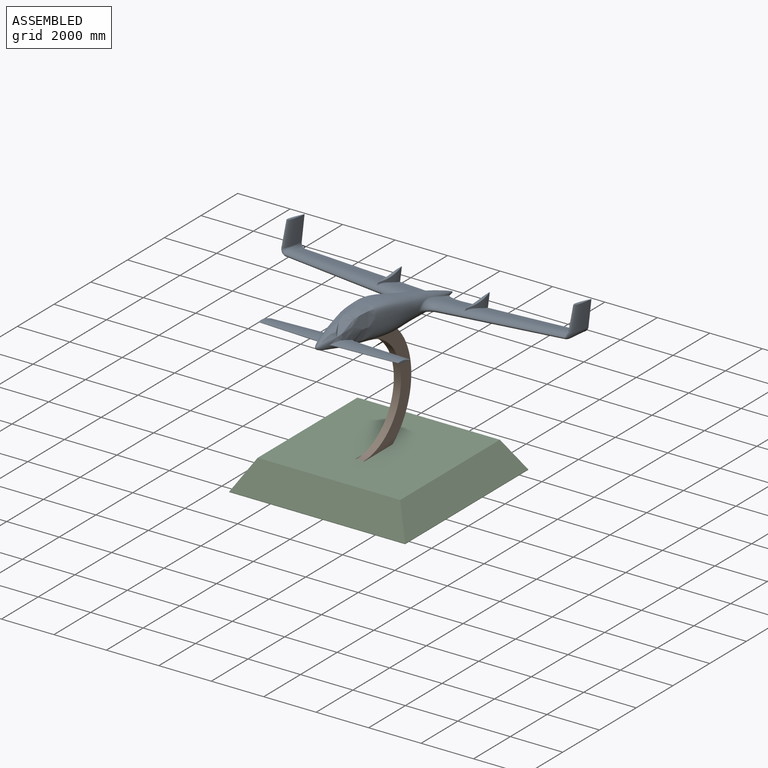
[diagram: assembled view]
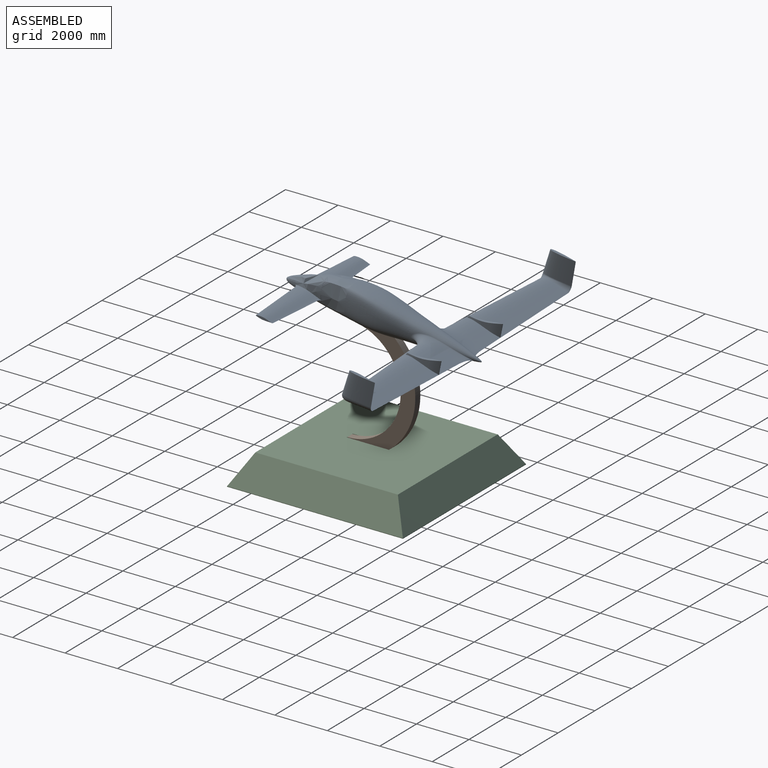
[diagram: assembled view, second angle]
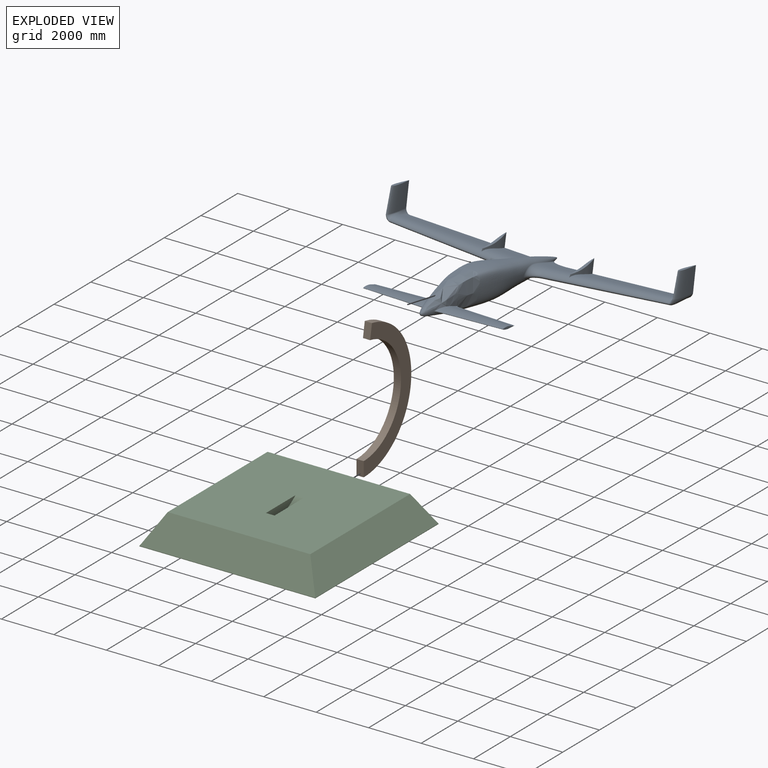
[diagram: exploded view]
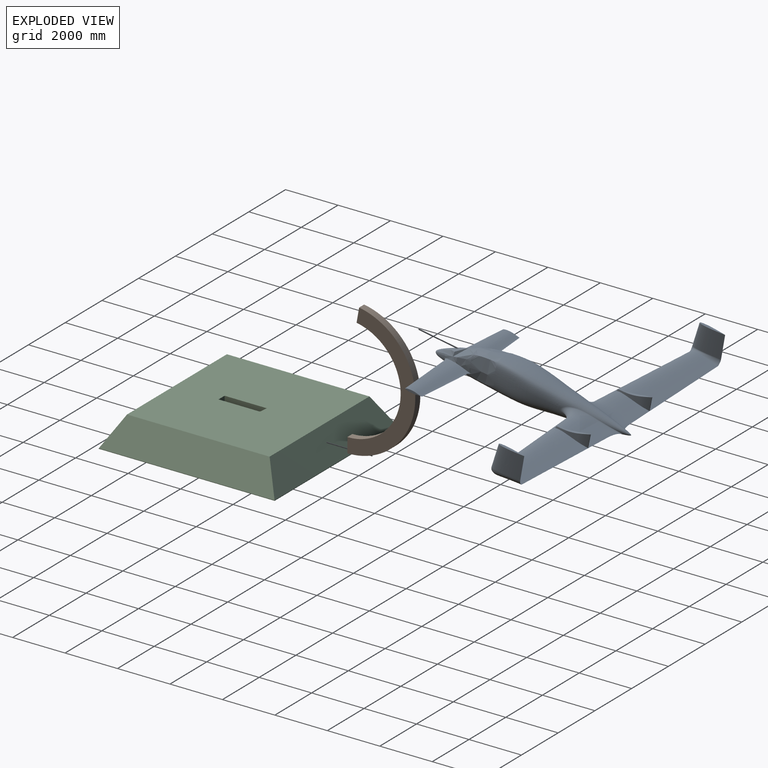
[diagram: exploded view, second angle]
ASSEMBLY  parts=3 mates=2
PART A: 233 faces, bbox 7494.4x11081.8x1985.3 mm
  f0: bspline ~370.06x29.98mm, area 3690.1mm2, adj f2,f5,f6,f8
  f1: bspline ~273.11x91.23mm, area 13028.4mm2, adj f4,f9,f11,f13,f15
  f2: bspline ~292.41x41.22mm, area 2700.3mm2, adj f0,f3,f8,f18
  f3: bspline ~300.31x42.01mm, area 2749.1mm2, adj f2,f8,f19,f20
  f4: extruded ~287.9x100.46mm, area 28910.7mm2, adj f1,f7,f10,f14,f17,f25
  f5: bspline ~87.96x7.21mm, area 871.6mm2, adj f0,f8,f27,f28
  f6: bspline ~900.47x451.13mm, area 354403.3mm2, adj f0,f18,f27,f32
  f7: extruded ~310.32x100.46mm, area 30508.9mm2, adj f4,f16,f26,f29,f31,f33
  f8: plane 934.49x108.58mm, normal (0,0,1), area 65994mm2, adj f0,f2,f3,f5,f19,f28,f35
  f9: bspline ~248.32x87.9mm, area 2688.4mm2, adj f1,f10,f13,f36
  f10: cylinder r=6.35mm len=6.91mm, axis (-0.94,-0.09,0.32), area 28.3mm2, adj f4,f9,f25,f36
  f11: bspline ~39.82x17.77mm, area 339.8mm2, adj f1,f12,f15,f38
  f12: bspline ~22x8.38mm, area 157.1mm2, adj f11,f13,f38
  f13: bspline ~39.26x17.49mm, area 340mm2, adj f1,f9,f12,f38
  f14: cylinder r=6.35mm len=6.91mm, axis (0.94,-0.09,-0.32), area 28.3mm2, adj f4,f15,f17,f39
  f15: bspline ~248.32x87.9mm, area 2688.4mm2, adj f1,f11,f14,f39
  f16: cylinder r=6.35mm len=6.58mm, axis (0.97,0,-0.26), area 17mm2, adj f7,f17,f31,f40
  f17: bspline ~287.9x95.58mm, area 3008.2mm2, adj f4,f14,f16,f40
  f18: bspline ~900.44x327.56mm, area 280833.3mm2, adj f2,f6,f20,f41
  f19: bspline ~384.71x30.01mm, area 3797.7mm2, adj f3,f8,f35,f42
  f20: bspline ~906.78x333.09mm, area 285566.8mm2, adj f3,f18,f42,f43
  f21: bspline ~373.75x30.45mm, area 3690mm2, adj f24,f45,f46,f47
  f22: bspline ~297.33x41.62mm, area 2750.1mm2, adj f24,f44,f45,f48
  f23: bspline ~273.11x91.23mm, area 13028.4mm2, adj f50,f52,f53,f55,f56
  f24: bspline ~295.39x41.51mm, area 2699.7mm2, adj f21,f22,f45,f60
  f25: bspline ~287.87x95.47mm, area 3008.2mm2, adj f4,f10,f26,f61
  f26: cylinder r=6.35mm len=6.58mm, axis (-0.97,0,0.26), area 17mm2, adj f7,f25,f29,f61
  f27: bspline ~906.78x180.47mm, area 84079.9mm2, adj f5,f6,f62,f63
  f28: bspline ~234.58x57.85mm, area 2410.2mm2, adj f5,f8,f35,f63
  f29: bspline ~310.41x66.63mm, area 3136.8mm2, adj f7,f26,f30,f64
  f30: cylinder r=6.35mm len=6.39mm, axis (-0.99,0.06,0.13), area 9mm2, adj f29,f33,f64,f65
  f31: bspline ~310.41x66.63mm, area 3136.8mm2, adj f7,f16,f34,f69
  f32: bspline ~435.48x133.01mm, area 62668.8mm2, adj f6,f41,f62,f70
  f33: bspline ~388.91x89.7mm, area 19393.3mm2, adj f7,f30,f34,f65,f66,f68,f71
  f34: cylinder r=6.35mm len=6.39mm, axis (0.99,0.06,-0.13), area 9mm2, adj f31,f33,f69,f71
  f35: bspline ~306.52x58.73mm, area 3124mm2, adj f8,f19,f28,f72
  f36: bspline ~486.87x250.52mm, area 104554.7mm2, adj f9,f10,f38,f61,f73
  f37: plane 9.46x9.13mm, normal (0.03,0,-1), area 47.6mm2, adj f38,f73
  f38: bspline ~513.52x51.94mm, area 38640.3mm2, adj f11,f12,f13,f36,f37,f39,f73
  f39: bspline ~485.96x250.52mm, area 103918.9mm2, adj f14,f15,f38,f40,f73
  f40: bspline ~403.3x287.9mm, area 81431.7mm2, adj f16,f17,f39,f69,f70,f73
  f41: bspline ~336.36x196.29mm, area 76801.5mm2, adj f18,f32,f43,f73
  f42: bspline ~900.48x463.97mm, area 364796.6mm2, adj f19,f20,f72,f74
  f43: bspline ~336.15x214.25mm, area 97217.8mm2, adj f20,f41,f74,f75
  f44: bspline ~380.92x29.64mm, area 3797.7mm2, adj f22,f45,f76,f77
  f45: plane 934.49x108.59mm, normal (0,0,1), area 66003mm2, adj f21,f22,f24,f44,f46,f76,f78
  f46: bspline ~87.96x7.21mm, area 871.6mm2, adj f21,f45,f78,f79
  f47: bspline ~900.47x451.13mm, area 354403.3mm2, adj f21,f60,f79,f80
  f48: bspline ~906.78x333.09mm, area 285566.8mm2, adj f22,f60,f77,f84
  f49: extruded ~310.32x100.46mm, area 30508.9mm2, adj f50,f59,f81,f83,f86,f87
  f50: extruded ~287.9x100.46mm, area 28910.7mm2, adj f23,f49,f51,f57,f58,f88
  f51: bspline ~6.92x6.58mm, area 28.3mm2, adj f50,f52,f88,f89
  f52: bspline ~248.32x87.92mm, area 2688.4mm2, adj f23,f51,f53,f89
  f53: bspline ~39.28x17.59mm, area 340mm2, adj f23,f52,f54,f91
  f54: bspline ~22x8.38mm, area 157mm2, adj f53,f55,f91
  f55: bspline ~39.82x17.77mm, area 339.8mm2, adj f23,f54,f56,f91
  f56: bspline ~249.91x88.53mm, area 2688.4mm2, adj f23,f55,f57,f92
  f57: bspline ~6.91x6.57mm, area 28.3mm2, adj f50,f56,f58,f92
  f58: bspline ~287.87x95.47mm, area 3008.2mm2, adj f50,f57,f59,f93
  f59: cylinder r=6.35mm len=6.58mm, axis (0.97,0,-0.26), area 17mm2, adj f49,f58,f81,f93
  f60: bspline ~906.78x330.9mm, area 280833.3mm2, adj f24,f47,f48,f94
  f61: bspline ~407.28x287.9mm, area 82732.4mm2, adj f25,f26,f36,f64,f73,f95
  f62: bspline ~122.54x87.46mm, area 11974.4mm2, adj f27,f32,f96,f97
  f63: bspline ~906.78x355.83mm, area 240121.8mm2, adj f27,f28,f72,f97
  f64: bspline ~325.09x261.07mm, area 49141.1mm2, adj f29,f30,f61,f95,f98
  f65: bspline ~340.38x41.1mm, area 3344.1mm2, adj f30,f33,f66,f98
  f66: bspline ~52.98x17.23mm, area 459.7mm2, adj f33,f65,f67,f99
  f67: bspline ~11.2x5.69mm, area 28.6mm2, adj f66,f68,f99
  f68: bspline ~53.85x17.37mm, area 459.8mm2, adj f33,f67,f71,f99
  f69: bspline ~324.78x256.84mm, area 47737.4mm2, adj f31,f34,f40,f70,f100
  f70: bspline ~3984.81x686.27mm, area 1789434.2mm2, adj f32,f40,f69,f73,f96,f100
  f71: bspline ~340.39x41.19mm, area 3344.1mm2, adj f33,f34,f68,f100
  f72: bspline ~906.78x427.9mm, area 309106.2mm2, adj f35,f42,f63,f101
  f73: bspline ~4572x467.65mm, area 1838622.1mm2, adj f36,f37,f38,f39,f40,f41,f61,f70
  f74: bspline ~431.23x255.04mm, area 145727mm2, adj f42,f43,f101,f103
  f75: bspline ~4572x467.37mm, area 1841452.6mm2, adj f43,f73,f103,f104
  f76: bspline ~306.52x58.71mm, area 3122.8mm2, adj f44,f45,f78,f105
  f77: bspline ~900.48x463.97mm, area 364796.6mm2, adj f44,f48,f105,f106
  f78: bspline ~234.58x57.85mm, area 2410.4mm2, adj f45,f46,f76,f108
  f79: bspline ~906.78x180.47mm, area 84079.9mm2, adj f46,f47,f107,f108
  f80: bspline ~435.48x133.01mm, area 62668.8mm2, adj f47,f94,f107,f113
  f81: bspline ~310.41x66.63mm, area 3136.8mm2, adj f49,f59,f82,f114
  f82: cylinder r=6.35mm len=6.39mm, axis (0.99,-0.06,-0.13), area 9mm2, adj f81,f83,f112,f114
  f83: bspline ~388.91x89.7mm, area 19393.3mm2, adj f49,f82,f85,f109,f111,f112,f115
  f84: bspline ~336.15x214.25mm, area 97217.8mm2, adj f48,f94,f106,f116
  f85: cylinder r=6.35mm len=6.39mm, axis (-0.99,-0.06,0.13), area 9mm2, adj f83,f86,f115,f118
  f86: bspline ~310.41x66.63mm, area 3136.8mm2, adj f49,f85,f87,f118
  f87: cylinder r=6.35mm len=6.58mm, axis (-0.97,0,0.26), area 17mm2, adj f49,f86,f88,f119
  f88: bspline ~287.9x95.58mm, area 3008.2mm2, adj f50,f51,f87,f119
  f89: bspline ~486.87x250.52mm, area 104552.4mm2, adj f51,f52,f91,f119,f120
  f90: plane 9.46x9.13mm, normal (0.03,0,-1), area 47.6mm2, adj f91,f120
  f91: bspline ~513.52x51.94mm, area 38640.3mm2, adj f53,f54,f55,f89,f90,f92,f120
  f92: bspline ~485.96x250.52mm, area 103916.6mm2, adj f56,f57,f91,f93,f120
  f93: bspline ~403.3x287.9mm, area 81431.6mm2, adj f58,f59,f92,f113,f114,f120
  f94: bspline ~336.36x196.29mm, area 76801.5mm2, adj f60,f80,f84,f120
  f95: bspline ~985.19x621.52mm, area 513828.5mm2, adj f61,f64,f73,f98,f122,f123
  f96: bspline ~3613.64x369.42mm, area 426751.8mm2, adj f62,f70,f100,f124
  f97: bspline ~267.07x198.12mm, area 46247.7mm2, adj f62,f63,f101,f124
  f98: bspline ~383.44x141.24mm, area 27521.8mm2, adj f64,f65,f95,f99,f123,f124
  f99: bspline ~101.03x97mm, area 9672.3mm2, adj f66,f67,f68,f98,f100,f124
  f100: bspline ~381.93x137.7mm, area 26757.1mm2, adj f69,f70,f71,f96,f99,f124
  f101: bspline ~348.06x265.45mm, area 128071.3mm2, adj f72,f74,f97,f125
  f102: bspline ~726.86x682.44mm, area 307035mm2, adj f73,f104,f122,f126
  f103: bspline ~4572x726.51mm, area 2352181.2mm2, adj f74,f75,f125,f127
  f104: bspline ~730.83x682.44mm, area 302117.4mm2, adj f75,f102,f126,f127
  f105: bspline ~906.78x427.9mm, area 309106.2mm2, adj f76,f77,f108,f129
  f106: bspline ~431.23x255.04mm, area 145727mm2, adj f77,f84,f129,f130
  f107: bspline ~122.54x87.46mm, area 11974.4mm2, adj f79,f80,f131,f132
  f108: bspline ~906.78x355.83mm, area 240121.8mm2, adj f78,f79,f105,f132
  f109: bspline ~53.85x17.37mm, area 459.8mm2, adj f83,f110,f112,f133
  f110: bspline ~11.2x5.69mm, area 28.6mm2, adj f109,f111,f133
  f111: bspline ~53.7x17.4mm, area 459.7mm2, adj f83,f110,f115,f133
  f112: bspline ~340.38x41.1mm, area 3344.1mm2, adj f82,f83,f109,f134
  f113: bspline ~3984.81x686.27mm, area 1789434.2mm2, adj f80,f93,f114,f120,f131,f134
  f114: bspline ~324.78x256.84mm, area 47650.1mm2, adj f81,f82,f93,f113,f134
  f115: bspline ~340.38x41.1mm, area 3344.1mm2, adj f83,f85,f111,f135
  f116: bspline ~4572x467.37mm, area 1841452.6mm2, adj f84,f120,f130,f136
  f117: bspline ~172.67x99.31mm, area 15444.4mm2, adj f121,f126,f128,f137
  f118: bspline ~325.09x261.07mm, area 49141.1mm2, adj f85,f86,f119,f135,f139
  f119: bspline ~407.28x287.9mm, area 82728.3mm2, adj f87,f88,f89,f118,f120,f139
  f120: bspline ~4572x467.65mm, area 1838696.3mm2, adj f89,f90,f91,f92,f93,f94,f113,f116
  f121: bspline ~782.2x164.62mm, area 84341.4mm2, adj f117,f126,f140,f153
  f122: bspline ~872.41x545.43mm, area 344022.6mm2, adj f95,f102,f141,f142
  f123: bspline ~999.21x207.48mm, area 124281mm2, adj f95,f98,f124,f142
  f124: bspline ~4617.72x675.14mm, area 1591587.6mm2, adj f96,f97,f98,f99,f100,f123,f125,f143
  f125: bspline ~4617.72x776.07mm, area 1992815.2mm2, adj f101,f103,f124,f144
  f126: bspline ~777.61x307.38mm, area 107657.9mm2, adj f102,f104,f117,f121,f128,f141,f145
  f127: bspline ~872.41x546.48mm, area 327165.3mm2, adj f103,f104,f144,f145
  f128: bspline ~782.2x164.62mm, area 84341.3mm2, adj f117,f126,f146,f159
  f129: bspline ~348.06x265.45mm, area 128071.3mm2, adj f105,f106,f132,f148
  f130: bspline ~4572x726.51mm, area 2352181.2mm2, adj f106,f116,f147,f148
  f131: bspline ~3613.64x369.42mm, area 426751.8mm2, adj f107,f113,f134,f149
  f132: bspline ~267.07x198.12mm, area 46247.7mm2, adj f107,f108,f129,f149
  f133: bspline ~101.03x97mm, area 9676.9mm2, adj f109,f110,f111,f134,f135,f149
  f134: bspline ~381.93x137.7mm, area 26757.1mm2, adj f112,f113,f114,f131,f133,f149
  f135: bspline ~383.44x141.24mm, area 27521.8mm2, adj f115,f118,f133,f139,f149,f150
  f136: bspline ~730.83x682.44mm, area 302117.4mm2, adj f116,f138,f147,f151
  f137: bspline ~172.67x99.31mm, area 15444.4mm2, adj f117,f140,f146,f151
  f138: bspline ~726.86x682.44mm, area 307035mm2, adj f120,f136,f151,f152
  f139: bspline ~985.19x621.52mm, area 513828.5mm2, adj f118,f119,f120,f135,f150,f152
  f140: bspline ~782.2x164.62mm, area 84341.4mm2, adj f121,f137,f151,f153
  f141: bspline ~872.41x182.78mm, area 56531.7mm2, adj f122,f126,f142,f153,f155
  f142: bspline ~456.81x453.66mm, area 77640.2mm2, adj f122,f123,f141,f143,f155
  f143: bspline ~790.43x418.5mm, area 239584.5mm2, adj f124,f142,f144,f155
  f144: bspline ~930.75x435.52mm, area 264866.6mm2, adj f125,f127,f143,f155
  f145: bspline ~872.41x175.6mm, area 85399.7mm2, adj f126,f127,f155,f159
  f146: bspline ~782.2x164.62mm, area 84341.3mm2, adj f128,f137,f151,f159
  f147: bspline ~872.41x546.48mm, area 327165.3mm2, adj f130,f136,f161,f162
  f148: bspline ~4617.72x776.07mm, area 1992815.2mm2, adj f129,f130,f149,f162
  f149: bspline ~4572x670.64mm, area 1591714.1mm2, adj f131,f132,f133,f134,f135,f148,f150,f163
  f150: bspline ~999.21x207.48mm, area 124281mm2, adj f135,f139,f149,f164
  f151: bspline ~777.61x307.38mm, area 107658mm2, adj f136,f137,f138,f140,f146,f161,f165
  f152: bspline ~872.41x545.43mm, area 344022.6mm2, adj f138,f139,f164,f165
  f153: bspline ~872.41x507.91mm, area 398004.4mm2, adj f121,f140,f141,f165,f166
  f154: bspline ~183.99x50.45mm, area 1884.1mm2, adj f157,f158,f168,f185
  f155: bspline ~1035.14x715mm, area 446404.1mm2, adj f141,f142,f143,f144,f145,f166,f169,f173
  f156: bspline ~48.03x8.65mm, area 222.7mm2, adj f167,f168,f170,f172,f183
  f157: bspline ~181.25x40.68mm, area 1845.7mm2, adj f154,f158,f171,f172
  f158: plane 585.68x86.73mm, normal (0,-1,0), area 32892.4mm2, adj f154,f157,f168,f172
  f159: bspline ~872.41x500.26mm, area 397184mm2, adj f128,f145,f146,f161,f173
  f160: bspline ~183.99x50.45mm, area 1883.6mm2, adj f174,f175,f176,f182
  f161: bspline ~872.41x175.6mm, area 85399.7mm2, adj f147,f151,f159,f179
  f162: bspline ~938.76x435.52mm, area 264866.6mm2, adj f147,f148,f163,f179
  f163: bspline ~799.68x418.5mm, area 239584.5mm2, adj f149,f162,f164,f179
  f164: bspline ~456.81x453.66mm, area 77640.3mm2, adj f150,f152,f163,f165,f179
  f165: bspline ~872.41x182.78mm, area 56366.3mm2, adj f151,f152,f153,f164,f179
  f166: bspline ~1035.14x740.77mm, area 700494.5mm2, adj f153,f155,f179,f180
  f167: bspline ~47.47x10.37mm, area 198.1mm2, adj f156,f168,f183
  f168: bspline ~418.47x55.62mm, area 4169.7mm2, adj f154,f156,f158,f167,f172,f184
  f169: bspline ~1032.93x962.99mm, area 932025.4mm2, adj f155,f180,f186,f190
  f170: bspline ~2227.18x204.5mm, area 129578.8mm2, adj f156,f183,f188,f189
  f171: bspline ~2233.48x327.48mm, area 523389.1mm2, adj f157,f185,f187,f189
  f172: bspline ~420.8x44.74mm, area 4185.4mm2, adj f156,f157,f158,f168,f189
  f173: bspline ~1035.14x661.64mm, area 665602.5mm2, adj f155,f159,f179,f190
  f174: bspline ~418.47x55.62mm, area 4169.7mm2, adj f160,f175,f177,f178,f181,f191
  f175: plane 585.68x86.73mm, normal (0,1,0), area 32893mm2, adj f160,f174,f176,f191
  f176: bspline ~181.24x40.68mm, area 1846.8mm2, adj f160,f175,f191,f192
  f177: bspline ~47.47x10.37mm, area 198.1mm2, adj f174,f178,f193
  f178: bspline ~48.03x8.65mm, area 222mm2, adj f174,f177,f191,f193,f194
  f179: bspline ~1035.14x715mm, area 446403.8mm2, adj f161,f162,f163,f164,f165,f166,f173,f195
  f180: bspline ~1032.93x934.75mm, area 935660.4mm2, adj f166,f169,f195,f196
  f181: bspline ~2227.21x614.58mm, area 1162291mm2, adj f174,f182,f193,f197
  f182: bspline ~2233.48x330.08mm, area 536714.9mm2, adj f160,f181,f192,f198
  f183: bspline ~2233.48x204.62mm, area 128892.2mm2, adj f156,f167,f170,f184,f199
  f184: bspline ~2227.21x614.58mm, area 1162291mm2, adj f168,f183,f185,f200
  f185: bspline ~2233.48x330.08mm, area 536714.9mm2, adj f154,f171,f184,f201
  f186: bspline ~1143x1032.29mm, area 1206653.8mm2, adj f169,f196,f203,f205
  f187: bspline ~355.8x235.1mm, area 64808.3mm2, adj f171,f201,f204,f219
  f188: bspline ~175.32x115mm, area 8604.4mm2, adj f170,f199,f203,f204
  f189: bspline ~2233.48x618.01mm, area 1163869.2mm2, adj f170,f171,f172,f204
  f190: bspline ~1032.93x774.6mm, area 636923.2mm2, adj f169,f173,f195,f205,f229,f230,f231
  f191: bspline ~420.8x44.74mm, area 4185.4mm2, adj f174,f175,f176,f178,f206
  f192: bspline ~2233.48x327.48mm, area 523389.1mm2, adj f176,f182,f206,f207
  f193: bspline ~2233.48x204.62mm, area 129493mm2, adj f177,f178,f181,f194,f208
  f194: bspline ~2227.18x204.5mm, area 129578.8mm2, adj f178,f193,f206,f209
  f195: bspline ~1032.93x962.99mm, area 932025.4mm2, adj f179,f180,f190,f210
  f196: bspline ~1143x948.34mm, area 1077712mm2, adj f180,f186,f210,f211
  f197: bspline ~788.76x165.25mm, area 84814.6mm2, adj f181,f198,f208,f212
  f198: bspline ~385.98x239.45mm, area 58588mm2, adj f182,f197,f207,f226
  f199: bspline ~174.74x110.05mm, area 8280.3mm2, adj f183,f188,f200,f203,f214
  f200: bspline ~740.68x164.84mm, area 84595.6mm2, adj f184,f199,f201,f214
  f201: bspline ~359.53x233.95mm, area 58546.5mm2, adj f185,f187,f200,f214,f219
  f202: bspline ~740.83x593.83mm, area 453056.9mm2, adj f211,f212,f214,f223,f227
  f203: bspline ~1008.49x986.37mm, area 950976.5mm2, adj f186,f188,f199,f211,f214,f215,f216
  f204: bspline ~744.64x204.81mm, area 106537.7mm2, adj f187,f188,f189,f215
  f205: bspline ~1143x768.14mm, area 661427.3mm2, adj f186,f190,f210,f216,f230,f231,f232
  f206: bspline ~2233.48x618.01mm, area 1163869.2mm2, adj f191,f192,f194,f217
  f207: bspline ~355.8x235.1mm, area 64808.3mm2, adj f192,f198,f217,f226
  f208: bspline ~174.74x110.05mm, area 8280.3mm2, adj f193,f197,f209,f212,f218
  f209: bspline ~175.32x115mm, area 8604.3mm2, adj f194,f208,f217,f218
  f210: bspline ~1143x1032.29mm, area 1206653.8mm2, adj f195,f196,f205,f218
  f211: bspline ~986.37x803.53mm, area 758719.9mm2, adj f196,f202,f203,f218
  f212: bspline ~740.83x735.05mm, area 285686.9mm2, adj f197,f202,f208,f218
  f213: cylinder r=4.79mm len=0.01mm, axis (-0.98,-0.17,0.09), area 0mm2, adj f214,f219
  f214: bspline ~740.83x735.05mm, area 345629.8mm2, adj f199,f200,f201,f202,f203,f213,f219
  f215: bspline ~740.83x151.31mm, area 79074.7mm2, adj f203,f204,f219,f221
  f216: bspline ~986.37x635.82mm, area 668023.8mm2, adj f203,f205,f218,f221
  f217: bspline ~744.64x204.81mm, area 106537.7mm2, adj f206,f207,f209,f222
  f218: bspline ~1008.49x986.37mm, area 950976.5mm2, adj f208,f209,f210,f211,f212,f216,f222
  f219: bspline ~673.19x479.76mm, area 202700.3mm2, adj f187,f201,f213,f214,f215,f220,f223,f224
  f220: bspline ~677.21x203.93mm, area 104384.3mm2, adj f219,f221,f224,f225
  f221: bspline ~740.83x509.09mm, area 393644.2mm2, adj f215,f216,f220,f222,f225
  f222: bspline ~740.83x151.31mm, area 79074.7mm2, adj f217,f218,f221,f226
  f223: bspline ~677.21x356.08mm, area 120739.6mm2, adj f202,f219,f224,f227
  f224: bspline ~205.04x151.43mm, area 32167.1mm2, adj f219,f220,f223,f228
  f225: bspline ~677.21x203.93mm, area 104384.3mm2, adj f220,f221,f226,f228
  f226: bspline ~684.69x484.99mm, area 170345.5mm2, adj f198,f207,f222,f225,f227,f228
  f227: bspline ~673.1x353.3mm, area 120739.9mm2, adj f202,f223,f226,f228
  f228: bspline ~205.04x151.43mm, area 32167.1mm2, adj f224,f225,f226,f227
  f229: cylinder r=2590.8mm len=1402.02mm, axis (0,1,0), area 489170mm2, adj f190,f230,f231,f232
  f230: plane 1415.75x541.46mm, normal (0,-1,0), area 507535.1mm2, adj f190,f205,f229,f232
  f231: plane 1415.75x541.46mm, normal (0,1,0), area 507535.1mm2, adj f190,f205,f229,f232
  f232: plane 560.23x331.07mm, normal (-1,0,0), area 181224.3mm2, adj f205,f229,f230,f231
PART B: 6 faces, bbox 274.6x2590.8x5142.2 mm
  f0: cylinder r=2032mm len=4033.13mm, axis (1,0,0), area 1655424.6mm2, adj f1,f3,f4,f5
  f1: plane 558.8x274.57mm, normal (0,-1,0), area 153432mm2, adj f0,f2,f4,f5
  f2: cylinder r=2590.8mm len=5142.24mm, axis (1,0,0), area 2110666.4mm2, adj f1,f3,f4,f5
  f3: plane 550.31x274.57mm, normal (0,-0.98,0.17), area 153432mm2, adj f0,f2,f4,f5
  f4: plane 5142.24x2590.8mm, normal (-1,0,0), area 3832285mm2, adj f0,f1,f2,f3
  f5: plane 5142.24x2590.8mm, normal (1,0,0), area 3832285mm2, adj f0,f1,f2,f3
PART C: 14 faces, bbox 6705.6x6705.6x1110 mm
  f0: plane 5435.6x5435.6mm, normal (0,0,1), area 29015036.7mm2, adj f6,f7,f8,f9,f10,f11,f12,f13
  f1: plane 6705.6x17.78mm, normal (0,1,0), area 119225.6mm2, adj f2,f4,f5,f13
  f2: plane 6705.6x17.78mm, normal (-1,0,0), area 119225.6mm2, adj f1,f3,f5,f11
  f3: plane 6705.6x17.78mm, normal (0,-1,0), area 119225.6mm2, adj f2,f4,f5,f10
  f4: plane 6705.6x17.78mm, normal (1,0,0), area 119225.6mm2, adj f1,f3,f5,f12
  f5: plane 6705.6x6705.6mm, normal (0,0,-1), area 44965071.4mm2, adj f1,f2,f3,f4
  f6: plane 1607.24x558.8mm, normal (-1,0,0), area 612985.4mm2, adj f0,f8,f9
  f7: plane 1607.24x558.8mm, normal (1,0,0), area 612985.4mm2, adj f0,f8,f9
  f8: cylinder r=2590.8mm len=1607.24mm, axis (-1,0,0), area 572494.8mm2, adj f0,f6,f7,f9
  f9: plane 558.8x330.2mm, normal (0,1,0), area 184515.8mm2, adj f0,f6,f7,f8
  f10: plane 6705.6x1092.2mm, normal (0,-0.86,0.5), area 7669467mm2, adj f0,f3,f11,f12
  f11: plane 6705.6x1092.2mm, normal (-0.86,0,0.5), area 7669467mm2, adj f0,f2,f10,f13
  f12: plane 6705.6x1092.2mm, normal (0.86,0,0.5), area 7669467mm2, adj f0,f4,f10,f13
  f13: plane 6705.6x1092.2mm, normal (0,0.86,0.5), area 7669467mm2, adj f0,f1,f11,f12
PLACE A rot(axis=(-0.09,-0.09,-0.99),90.4deg) t=(75.29,-2708.13,6720.62)mm
PLACE B t=(75.29,-290.57,1577.92)mm
PLACE C t=(75.29,725.43,467.94)mm fixed
MATE planar B.f1 <-> C.f9  axis (0,-1,0) through (75.29,-290.57,1298.52)mm
MATE planar B.f3 <-> A.f232  axis (0,-0.98,0.17) through (75.29,110.8,5886.21)mm
